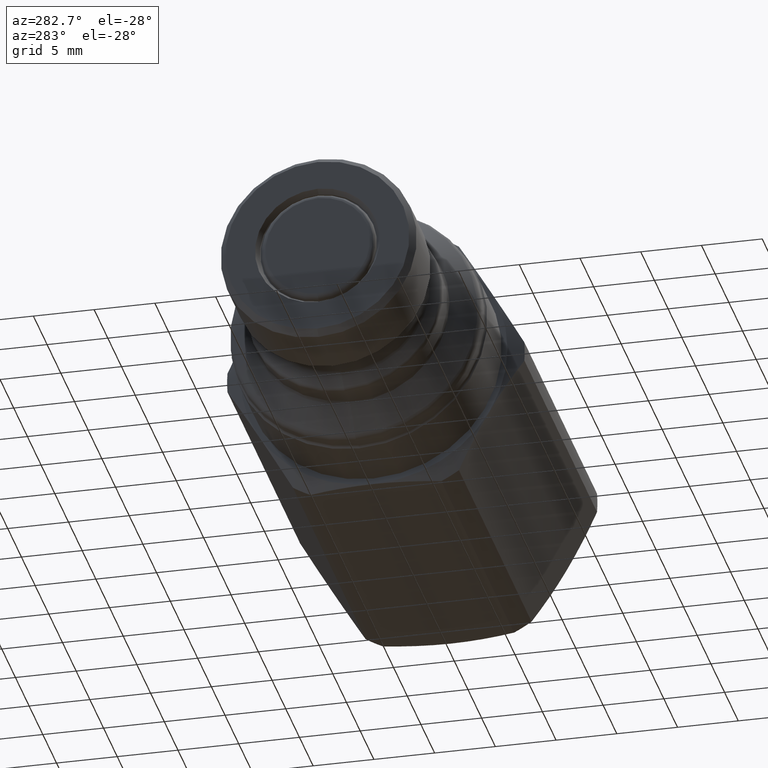
[diagram: clean part render]
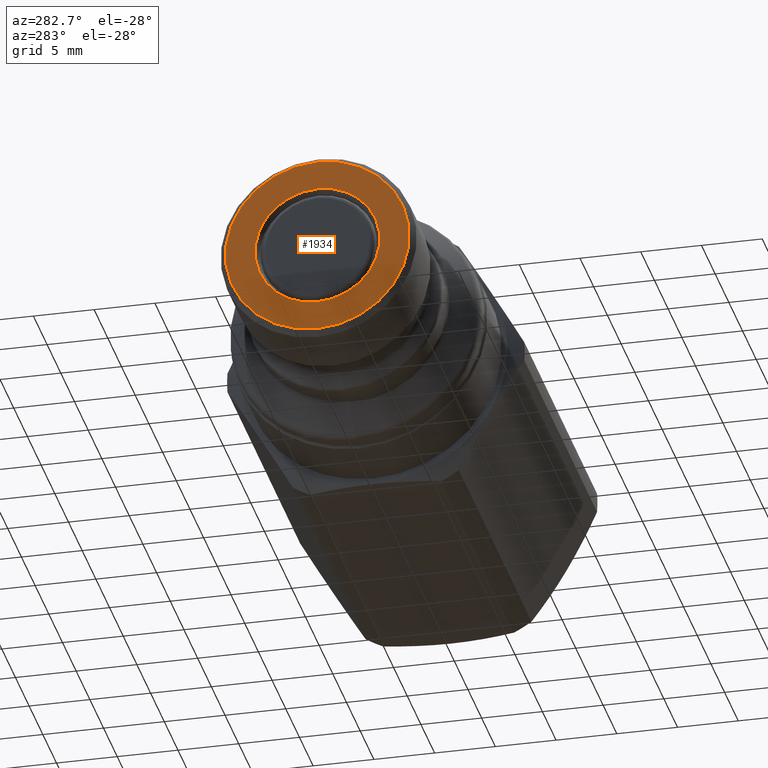
[diagram: same view with one face highlighted and labeled with its STEP entity id]
A machine part, auxiliary view. The second image highlights one B-rep face of the part: STEP entity #1934.
In plain terms, the highlighted planar face has unit normal (1, 0, -0).
Its self-contained STEP definition (entity closure, byte-faithful):
#424 = CARTESIAN_POINT ( 'NONE',  ( 0.0000000000000000000, 0.0000000000000000000, 0.0000000000000000000 ) ) ;
#425 = DIRECTION ( 'NONE',  ( 1.000000000000000000, -0.0000000000000000000, -0.0000000000000000000 ) ) ;
#426 = DIRECTION ( 'NONE',  ( 0.0000000000000000000, 0.0000000000000000000, -1.000000000000000000 ) ) ;
#427 = CARTESIAN_POINT ( 'NONE',  ( 0.0000000000000000000, 0.0000000000000000000, 0.0000000000000000000 ) ) ;
#428 = DIRECTION ( 'NONE',  ( 1.000000000000000000, -0.0000000000000000000, -0.0000000000000000000 ) ) ;
#429 = DIRECTION ( 'NONE',  ( 0.0000000000000000000, 0.0000000000000000000, -1.000000000000000000 ) ) ;
#641 = PLANE ( 'NONE',  #892 ) ;
#642 = CARTESIAN_POINT ( 'NONE',  ( 0.0000000000000000000, 5.138675134594809200, 0.0000000000000000000 ) ) ;
#643 = DIRECTION ( 'NONE',  ( 1.000000000000000000, 0.0000000000000000000, -0.0000000000000000000 ) ) ;
#644 = DIRECTION ( 'NONE',  ( -0.0000000000000000000, 0.0000000000000000000, -1.000000000000000000 ) ) ;
#746 = CARTESIAN_POINT ( 'NONE',  ( 0.0000000000000000000, 0.0000000000000000000, 5.138675134594809200 ) ) ;
#747 = CARTESIAN_POINT ( 'NONE',  ( 0.0000000000000000000, 9.582861203328036000E-016, 7.574999999999996600 ) ) ;
#750 = CARTESIAN_POINT ( 'NONE',  ( 0.0000000000000000000, 0.0000000000000000000, -7.574999999999996600 ) ) ;
#782 = CARTESIAN_POINT ( 'NONE',  ( 0.0000000000000000000, 6.293062055439626400E-016, -5.138675134594809200 ) ) ;
#840 = AXIS2_PLACEMENT_3D ( 'NONE', #424, #425, #426 ) ;
#841 = AXIS2_PLACEMENT_3D ( 'NONE', #427, #428, #429 ) ;
#892 = AXIS2_PLACEMENT_3D ( 'NONE', #642, #643, #644 ) ;
#1157 = EDGE_LOOP ( 'NONE', ( #2134, #2133 ) ) ;
#1166 = EDGE_LOOP ( 'NONE', ( #1544, #1545 ) ) ;
#1193 = CIRCLE ( 'NONE', #1712, 7.574999999999996600 ) ;
#1209 = CIRCLE ( 'NONE', #1720, 5.138675134594809200 ) ;
#1370 = CIRCLE ( 'NONE', #840, 7.574999999999996600 ) ;
#1371 = CIRCLE ( 'NONE', #841, 5.138675134594809200 ) ;
#1468 = FACE_OUTER_BOUND ( 'NONE', #1166, .T. ) ;
#1469 = FACE_BOUND ( 'NONE', #1157, .T. ) ;
#1544 = ORIENTED_EDGE ( 'NONE', *, *, #1548, .F. ) ;
#1545 = ORIENTED_EDGE ( 'NONE', *, *, #1707, .F. ) ;
#1548 = EDGE_CURVE ( 'NONE', #2174, #2171, #1193, .T. ) ;
#1560 = EDGE_CURVE ( 'NONE', #2170, #2206, #1209, .T. ) ;
#1707 = EDGE_CURVE ( 'NONE', #2171, #2174, #1370, .T. ) ;
#1708 = EDGE_CURVE ( 'NONE', #2206, #2170, #1371, .T. ) ;
#1712 = AXIS2_PLACEMENT_3D ( 'NONE', #1848, #1824, #1800 ) ;
#1720 = AXIS2_PLACEMENT_3D ( 'NONE', #1972, #1968, #1974 ) ;
#1800 = DIRECTION ( 'NONE',  ( 0.0000000000000000000, 0.0000000000000000000, -1.000000000000000000 ) ) ;
#1824 = DIRECTION ( 'NONE',  ( 1.000000000000000000, -0.0000000000000000000, -0.0000000000000000000 ) ) ;
#1848 = CARTESIAN_POINT ( 'NONE',  ( 0.0000000000000000000, 0.0000000000000000000, 0.0000000000000000000 ) ) ;
#1934 = ADVANCED_FACE ( 'NONE', ( #1468, #1469 ), #641, .F. ) ;
#1968 = DIRECTION ( 'NONE',  ( 1.000000000000000000, -0.0000000000000000000, -0.0000000000000000000 ) ) ;
#1972 = CARTESIAN_POINT ( 'NONE',  ( 0.0000000000000000000, 0.0000000000000000000, 0.0000000000000000000 ) ) ;
#1974 = DIRECTION ( 'NONE',  ( 0.0000000000000000000, 0.0000000000000000000, -1.000000000000000000 ) ) ;
#2133 = ORIENTED_EDGE ( 'NONE', *, *, #1708, .T. ) ;
#2134 = ORIENTED_EDGE ( 'NONE', *, *, #1560, .T. ) ;
#2170 = VERTEX_POINT ( 'NONE', #746 ) ;
#2171 = VERTEX_POINT ( 'NONE', #747 ) ;
#2174 = VERTEX_POINT ( 'NONE', #750 ) ;
#2206 = VERTEX_POINT ( 'NONE', #782 ) ;